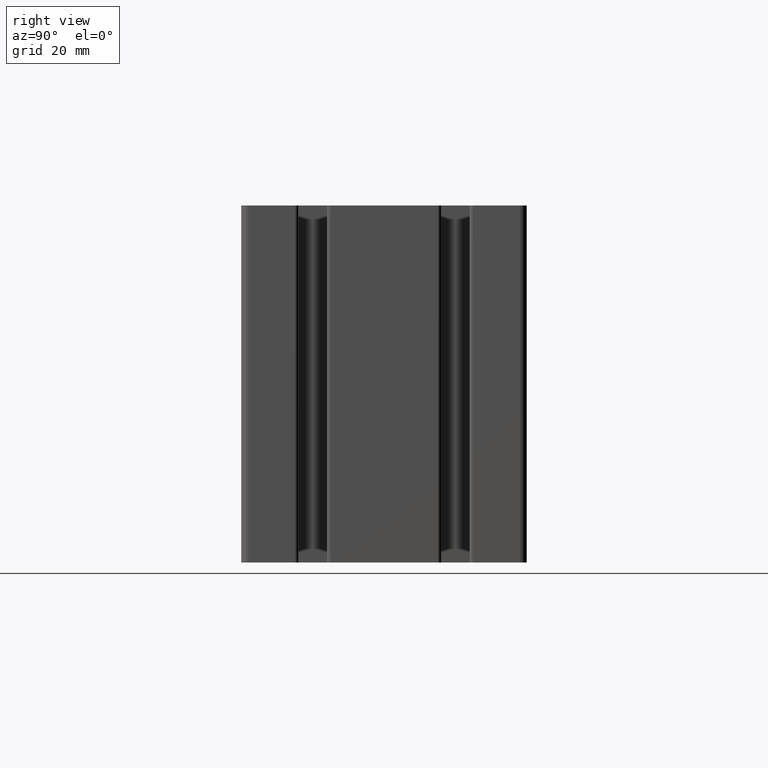
[diagram: clean part render]
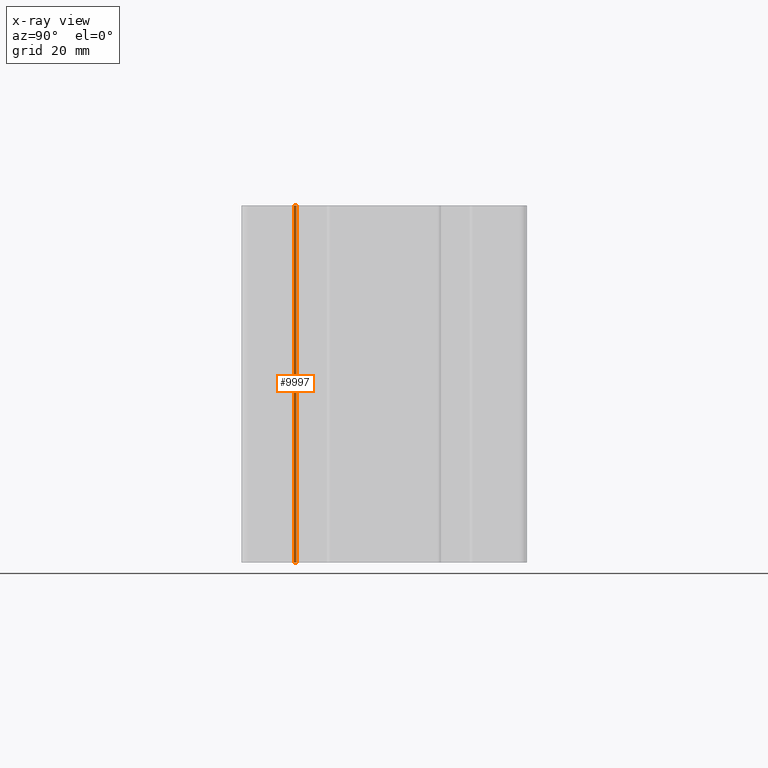
[diagram: x-ray — body ghosted, one internal face saturated and labeled with its STEP entity id]
A machine part, right view, then the same camera in x-ray: the body is ghosted and one INTERNAL B-rep face — a face not visible from any outside direction — is saturated and labeled: STEP entity #9997.
In plain terms, the highlighted cylindrical surface (edge-blend (fillet) strip) has radius 1 mm, axis along (0, 0, -1).
Its self-contained STEP definition (entity closure, byte-faithful):
#678=FACE_OUTER_BOUND('',#1223,.T.);
#1223=EDGE_LOOP('',(#8815,#8816,#8817,#8818));
#2241=LINE('',#16854,#3258);
#2242=LINE('',#16856,#3259);
#3258=VECTOR('',#13696,100.);
#3259=VECTOR('',#13699,100.);
#3600=CIRCLE('',#10355,0.999999999999973);
#3827=CIRCLE('',#10583,0.999999999999973);
#4291=VERTEX_POINT('',#14954);
#4292=VERTEX_POINT('',#14956);
#4774=VERTEX_POINT('',#15927);
#4775=VERTEX_POINT('',#15929);
#5298=EDGE_CURVE('',#4292,#4291,#3600,.T.);
#5787=EDGE_CURVE('',#4774,#4775,#3827,.T.);
#6249=EDGE_CURVE('',#4292,#4774,#2241,.T.);
#6250=EDGE_CURVE('',#4291,#4775,#2242,.T.);
#8815=ORIENTED_EDGE('',*,*,#5787,.F.);
#8816=ORIENTED_EDGE('',*,*,#6249,.F.);
#8817=ORIENTED_EDGE('',*,*,#5298,.T.);
#8818=ORIENTED_EDGE('',*,*,#6250,.T.);
#9565=CYLINDRICAL_SURFACE('',#10988,0.999999999999973);
#9997=ADVANCED_FACE('',(#678),#9565,.F.);
#10355=AXIS2_PLACEMENT_3D('',#14957,#11765,#11766);
#10583=AXIS2_PLACEMENT_3D('',#15930,#12483,#12484);
#10988=AXIS2_PLACEMENT_3D('',#16855,#13697,#13698);
#11765=DIRECTION('center_axis',(0.,0.,1.));
#11766=DIRECTION('ref_axis',(1.,0.,0.));
#12483=DIRECTION('center_axis',(0.,0.,1.));
#12484=DIRECTION('ref_axis',(1.,0.,0.));
#13696=DIRECTION('',(0.,0.,-1.));
#13697=DIRECTION('center_axis',(0.,0.,-1.));
#13698=DIRECTION('ref_axis',(0.923879532511288,0.382683432365087,0.));
#13699=DIRECTION('',(0.,0.,-1.));
#14954=CARTESIAN_POINT('',(30.2426406797487,-25.2422835429415,100.));
#14956=CARTESIAN_POINT('',(29.9497474609353,-24.535176761755,100.));
#14957=CARTESIAN_POINT('Origin',(30.9497474609353,-24.5351767617549,100.));
#15927=CARTESIAN_POINT('',(29.9497474609353,-24.535176761755,0.));
#15929=CARTESIAN_POINT('',(30.2426406797487,-25.2422835429415,0.));
#15930=CARTESIAN_POINT('Origin',(30.9497474609353,-24.5351767617549,0.));
#16854=CARTESIAN_POINT('',(29.9497474609353,-24.535176761755,100.));
#16855=CARTESIAN_POINT('Origin',(30.9497474609353,-24.5351767617549,100.00000001));
#16856=CARTESIAN_POINT('',(30.2426406797487,-25.2422835429415,100.));